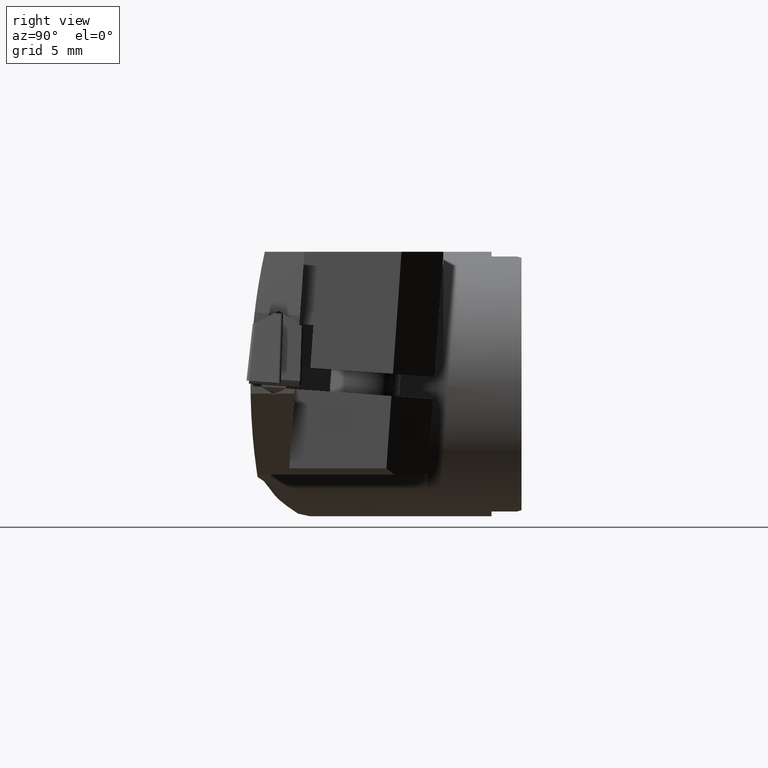
[diagram: clean part render]
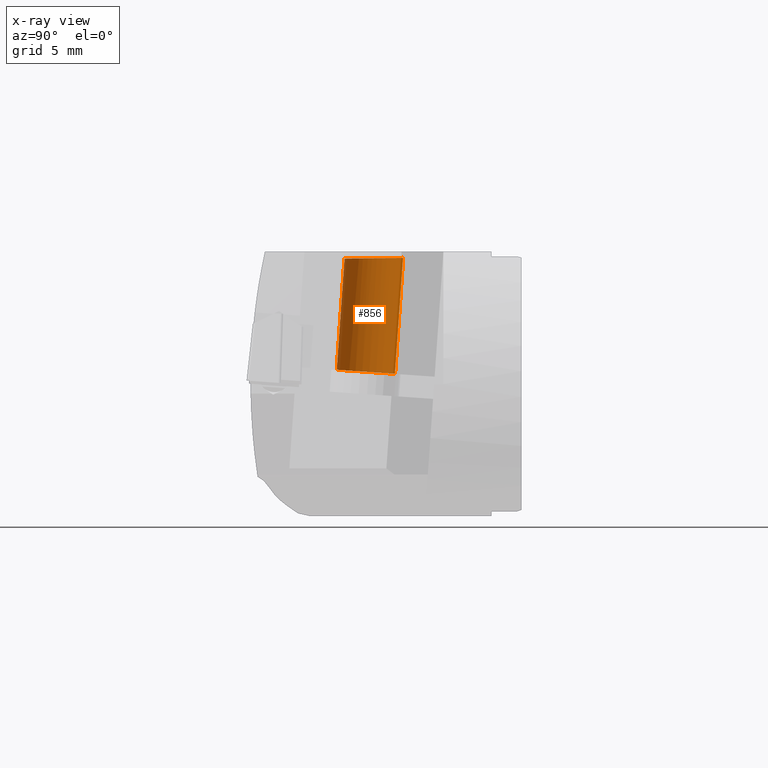
[diagram: x-ray — body ghosted, one internal face saturated and labeled with its STEP entity id]
A machine part, right view, then the same camera in x-ray: the body is ghosted and one INTERNAL B-rep face — a face not visible from any outside direction — is saturated and labeled: STEP entity #856.
In plain terms, the highlighted cylindrical surface (edge-blend (fillet) strip) has radius 2.1 mm, axis along (-0, -0.0698, -0.9976).
Its self-contained STEP definition (entity closure, byte-faithful):
#856=ADVANCED_FACE('NONE',(#2332),#2333,.F.);
#924=VERTEX_POINT('NONE',#2409);
#1288=VERTEX_POINT('NONE',#2811);
#1358=VERTEX_POINT('NONE',#2888);
#1458=EDGE_CURVE('NONE',#924,#1358,#3000,.T.);
#1580=EDGE_CURVE('NONE',#1288,#2072,#3131,.T.);
#1670=EDGE_CURVE('NONE',#924,#1288,#3226,.T.);
#1696=EDGE_CURVE('Kante73',#2072,#1358,#3256,.F.);
#2072=VERTEX_POINT('NONE',#3669);
#2332=FACE_OUTER_BOUND('',#4018,.T.);
#2333=CYLINDRICAL_SURFACE('',#4019,2.1);
#2409=CARTESIAN_POINT('',(17.0,-8.5059248776954,9.06185635237265));
#2811=CARTESIAN_POINT('',(17.0,-12.7204210980565,9.00121797487007));
#2888=CARTESIAN_POINT('',(17.0,-9.08884058146601,0.725773416952027));
#3000=LINE('',#5246,#5247);
#3131=LINE('',#5580,#5581);
#3226=B_SPLINE_CURVE_WITH_KNOTS('',3,(#5790,#5791,#5792,#5793,#5794,#5795,#5796,#5797,#5798,#5799,#5800,#5801,#5802,#5803,#5804,#5805,#5806,#5807),.UNSPECIFIED.,.F.,.F.,(4,2,2,2,2,2,2,2,4),(0.5,0.5625,0.625,0.6875,0.75,0.8125,0.875,0.9375,1.0),.UNSPECIFIED.);
#3256=CIRCLE('',#5844,2.1);
#3669=CARTESIAN_POINT('',(17.0,-13.2786095925573,1.01875060667735));
#4018=EDGE_LOOP('',(#7153,#7154,#7155,#7156));
#4019=AXIS2_PLACEMENT_3D('',#7157,#7158,#7159);
#5246=CARTESIAN_POINT('',(17.0,-9.75564161702764,-8.80992565224571));
#5247=VECTOR('',#7922,1000.0);
#5580=CARTESIAN_POINT('',(17.0,-13.9454106281189,-8.51694846252042));
#5581=VECTOR('',#8032,1000.0);
#5790=CARTESIAN_POINT('',(17.0,-8.5059248776954,9.06185635237265));
#5791=CARTESIAN_POINT('',(16.8002212985091,-8.5059248776954,9.06185635237265));
#5792=CARTESIAN_POINT('',(16.5807915439395,-8.53473836877317,9.06016968104738));
#5793=CARTESIAN_POINT('',(16.1290722829966,-8.68121978585691,9.05560663196384));
#5794=CARTESIAN_POINT('',(15.8967190510087,-8.79942004042666,9.05276747824492));
#5795=CARTESIAN_POINT('',(15.4685691125687,-9.14552349651222,9.04735733435325));
#5796=CARTESIAN_POINT('',(15.2731210238858,-9.3741114841858,9.04483422909336));
#5797=CARTESIAN_POINT('',(14.9883498550553,-9.93207770006173,9.0394329449742));
#5798=CARTESIAN_POINT('',(14.9,-10.2618723906443,9.03659169269163));
#5799=CARTESIAN_POINT('',(14.9,-10.9644735851076,9.02648263455109));
#5800=CARTESIAN_POINT('',(14.9883959403493,-11.2944266094996,9.02363879583926));
#5801=CARTESIAN_POINT('',(15.2732641304705,-11.8524471963141,9.01823350901633));
#5802=CARTESIAN_POINT('',(15.4687619195483,-12.0810254197683,9.01570776980317));
#5803=CARTESIAN_POINT('',(15.8969573037474,-12.4270725877185,9.01029368986164));
#5804=CARTESIAN_POINT('',(16.1293064993756,-12.5452276732637,9.00745332878938));
#5805=CARTESIAN_POINT('',(16.5809523786086,-12.6916357503266,9.00289295596215));
#5806=CARTESIAN_POINT('',(16.8003135461305,-12.720421641158,9.00121020815726));
#5807=CARTESIAN_POINT('',(17.0,-12.7204210980565,9.00121797487007));
#5844=AXIS2_PLACEMENT_3D('',#8154,#8155,#8156);
#7153=ORIENTED_EDGE('',*,*,#1670,.T.);
#7154=ORIENTED_EDGE('',*,*,#1580,.T.);
#7155=ORIENTED_EDGE('',*,*,#1696,.T.);
#7156=ORIENTED_EDGE('',*,*,#1458,.F.);
#7157=CARTESIAN_POINT('',(17.0,-11.8505261225733,-8.66343705738307));
#7158=DIRECTION('',(-0.0,-0.0697564737441186,-0.997564050259825));
#7159=DIRECTION('',(0.0,0.997564050259825,-0.0697564737441186));
#7922=DIRECTION('',(0.0,-0.0697564737441184,-0.997564050259825));
#8032=DIRECTION('',(0.0,-0.0697564737441184,-0.997564050259825));
#8154=CARTESIAN_POINT('',(17.0,-11.1837250870116,0.872262011814755));
#8155=DIRECTION('',(-8.51523805293603E-017,0.0697564737441255,0.997564050259824));
#8156=DIRECTION('',(5.80734248429939E-031,0.997564050259824,-0.0697564737441255));